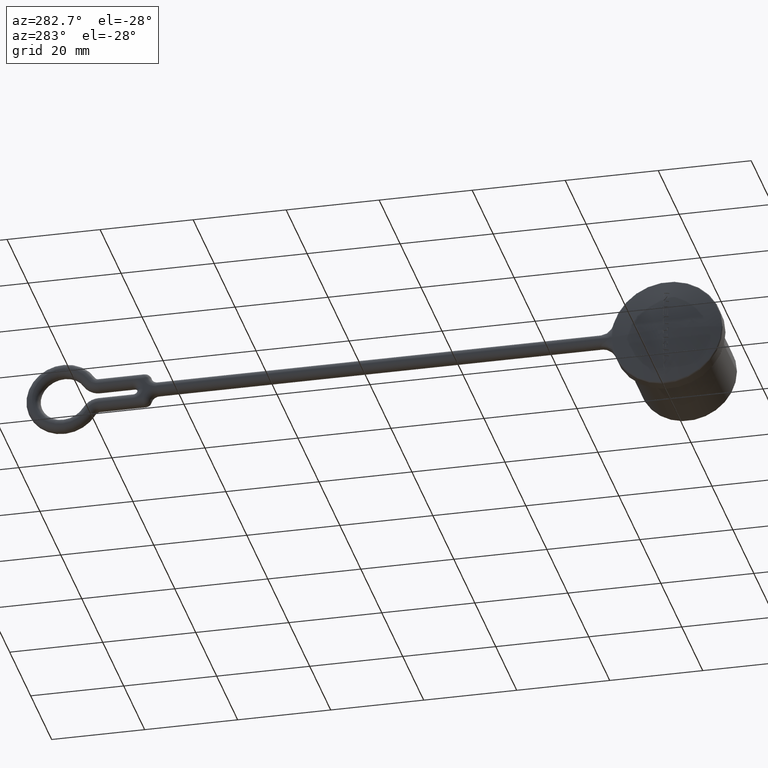
[diagram: clean part render]
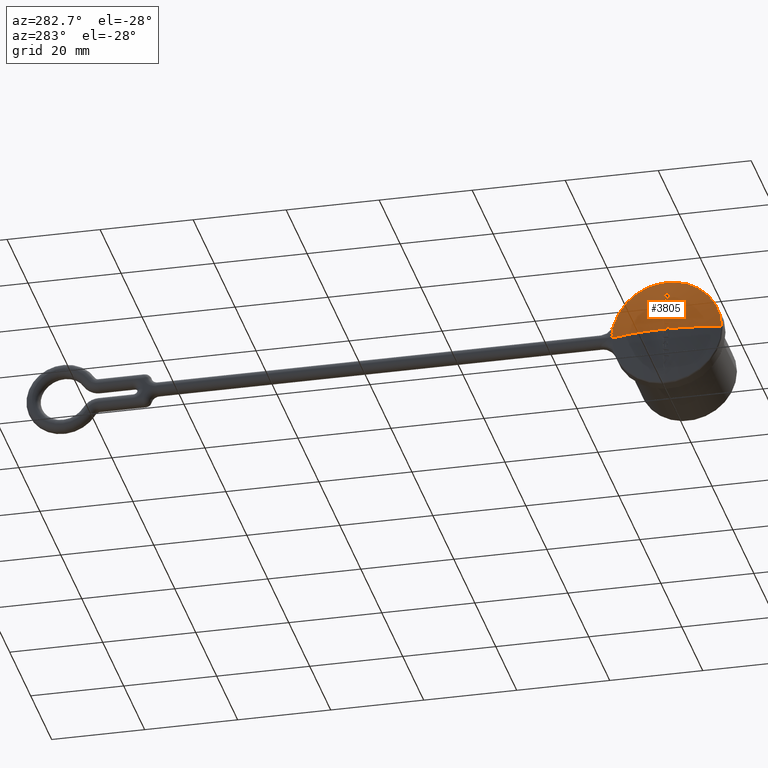
[diagram: same view with one face highlighted and labeled with its STEP entity id]
A machine part, auxiliary view. The second image highlights one B-rep face of the part: STEP entity #3805.
In plain terms, the highlighted spherical surface has radius 48.75 mm.
Its self-contained STEP definition (entity closure, byte-faithful):
#426=CARTESIAN_POINT('',(-3.057210250069E0,1.176179171369E1,5.007474968166E-1));
#427=CARTESIAN_POINT('',(-3.057531107071E0,1.176314051725E1,4.386105985639E-1));
#428=CARTESIAN_POINT('',(-3.059348938048E0,1.175987557986E1,3.186745185695E-1));
#429=CARTESIAN_POINT('',(-3.060150760801E0,1.176027607134E1,1.515604317796E-1));
#430=CARTESIAN_POINT('',(-3.060137454660E0,1.176009241780E1,4.906586877069E-2));
#431=CARTESIAN_POINT('',(-3.060216983427E0,1.175977246916E1,
-4.892866496235E-8));
#452=CARTESIAN_POINT('',(-4.494885192273E0,-7.061639984816E-1,
9.300844638873E-14));
#453=CARTESIAN_POINT('',(-4.494885192273E0,-7.061639984816E-1,
2.422937993826E-2));
#454=CARTESIAN_POINT('',(-4.494849970660E0,-7.061636556981E-1,
7.224224188880E-2));
#455=CARTESIAN_POINT('',(-4.494684499052E0,-7.061641948217E-1,
1.461358649916E-1));
#456=CARTESIAN_POINT('',(-4.494504155381E0,-7.061639984815E-1,
1.942543884347E-1));
#457=CARTESIAN_POINT('',(-4.494395487950E0,-7.061639984815E-1,
2.184969601020E-1));
#459=CARTESIAN_POINT('',(-4.494395487950E0,-7.061639984815E-1,
2.184969601020E-1));
#460=CARTESIAN_POINT('',(-4.494840056316E0,-6.734738410544E-1,
2.249702585973E-1));
#461=CARTESIAN_POINT('',(-4.495641421515E0,-6.095073657693E-1,
2.376429845186E-1));
#462=CARTESIAN_POINT('',(-4.496601535144E0,-5.183636692864E-1,
2.556795621402E-1));
#463=CARTESIAN_POINT('',(-4.497100272742E0,-4.606303363511E-1,
2.671174872182E-1));
#464=CARTESIAN_POINT('',(-4.497318038212E0,-4.325913584816E-1,
2.726697600592E-1));
#466=CARTESIAN_POINT('',(-4.497318038212E0,-4.325913584816E-1,
2.726697600592E-1));
#467=CARTESIAN_POINT('',(-4.497486156323E0,-4.325913584816E-1,
2.426139628092E-1));
#468=CARTESIAN_POINT('',(-4.497765496122E0,-4.325847842039E-1,
1.833547056071E-1));
#469=CARTESIAN_POINT('',(-4.498029296728E0,-4.325905148921E-1,
8.840139575121E-2));
#470=CARTESIAN_POINT('',(-4.498080625976E0,-4.325913584815E-1,
3.018592930511E-2));
#471=CARTESIAN_POINT('',(-4.498080625976E0,-4.325913584815E-1,
4.933543109338E-14));
#473=CARTESIAN_POINT('',(-3.694082470672E0,-7.061639984826E-1,
8.799362957243E0));
#474=CARTESIAN_POINT('',(-3.691312466983E0,-5.768780027249E-1,
8.824830982837E0));
#475=CARTESIAN_POINT('',(-3.684698504078E0,-3.186765737361E-1,
8.875693952433E0));
#476=CARTESIAN_POINT('',(-3.671442797414E0,7.064782215438E-2,8.952387054102E0));
#477=CARTESIAN_POINT('',(-3.660460308927E0,3.291067001235E-1,9.003300750307E0));
#478=CARTESIAN_POINT('',(-3.654415259535E0,4.585512015179E-1,9.028799999899E0));
#480=CARTESIAN_POINT('',(-3.654415259535E0,4.585512015179E-1,9.028799999899E0));
#481=CARTESIAN_POINT('',(-3.673177926165E0,4.585512015179E-1,8.929250273066E0));
#482=CARTESIAN_POINT('',(-3.710082611892E0,4.585512017924E-1,8.730033897170E0));
#483=CARTESIAN_POINT('',(-3.763573668355E0,4.585512018002E-1,8.430881305823E0));
#484=CARTESIAN_POINT('',(-3.797991685408E0,4.585512015188E-1,8.231220319391E0));
#485=CARTESIAN_POINT('',(-3.814889314722E0,4.585512015188E-1,8.131337279898E0));
#487=CARTESIAN_POINT('',(-3.814889314722E0,4.585512015188E-1,8.131337279898E0));
#488=CARTESIAN_POINT('',(-3.818162832879E0,3.821846103240E-1,8.116293838513E0));
#489=CARTESIAN_POINT('',(-3.824325946250E0,2.295872099820E-1,8.086233712169E0));
#490=CARTESIAN_POINT('',(-3.832446480742E0,3.832014526317E-4,8.041082836108E0));
#491=CARTESIAN_POINT('',(-3.837091541810E0,-1.520335348152E-1,
8.011058299942E0));
#492=CARTESIAN_POINT('',(-3.839226772836E0,-2.282708732490E-1,
7.996040320036E0));
#494=CARTESIAN_POINT('',(-3.839226772836E0,-2.282708732490E-1,
7.996040320036E0));
#495=CARTESIAN_POINT('',(-3.856923433879E0,-1.482728701191E-1,
7.891894080314E0));
#496=CARTESIAN_POINT('',(-3.890674385223E0,9.250749160687E-3,7.686821027618E0));
#497=CARTESIAN_POINT('',(-3.936675687736E0,2.380684816110E-1,7.388930855192E0));
#498=CARTESIAN_POINT('',(-3.964498050397E0,3.858488838212E-1,7.196542070882E0));
#499=CARTESIAN_POINT('',(-3.977744455962E0,4.585512015181E-1,7.101893795788E0));
#501=CARTESIAN_POINT('',(-3.977744455962E0,4.585512015181E-1,7.101893795788E0));
#502=CARTESIAN_POINT('',(-3.995455487825E0,4.585512015181E-1,6.981621211704E0));
#503=CARTESIAN_POINT('',(-4.029833217853E0,4.585513200037E-1,6.741924780411E0));
#504=CARTESIAN_POINT('',(-4.078327423237E0,4.585510860765E-1,6.384974273534E0));
#505=CARTESIAN_POINT('',(-4.108651690996E0,4.585512015188E-1,6.148747742278E0));
#506=CARTESIAN_POINT('',(-4.123322477968E0,4.585512015188E-1,6.031078115788E0));
#508=CARTESIAN_POINT('',(-4.123322477968E0,4.585512015188E-1,6.031078115788E0));
#509=CARTESIAN_POINT('',(-4.127727750301E0,3.291353885338E-1,6.005584517521E0));
#510=CARTESIAN_POINT('',(-4.135437730650E0,7.121595101820E-2,5.954777300001E0));
#511=CARTESIAN_POINT('',(-4.143844161095E0,-3.194843932081E-1,
5.877812626142E0));
#512=CARTESIAN_POINT('',(-4.147230829185E0,-5.769647478796E-1,
5.827092010813E0));
#513=CARTESIAN_POINT('',(-4.148396598094E0,-7.061639984822E-1,
5.801641073132E0));
#515=CARTESIAN_POINT('',(-4.148396598094E0,-7.061639984822E-1,
5.801641073132E0));
#516=CARTESIAN_POINT('',(-4.136282330605E0,-7.061639984822E-1,
5.902700603539E0));
#517=CARTESIAN_POINT('',(-4.111292629079E0,-7.061638923820E-1,
6.105812751346E0));
#518=CARTESIAN_POINT('',(-4.071465852335E0,-7.061641065382E-1,
6.413436663925E0));
#519=CARTESIAN_POINT('',(-4.043321334584E0,-7.061639984824E-1,
6.620420311542E0));
#520=CARTESIAN_POINT('',(-4.028840980320E0,-7.061639984824E-1,
6.724384433132E0));
#522=CARTESIAN_POINT('',(-4.028840980320E0,-7.061639984824E-1,
6.724384433132E0));
#523=CARTESIAN_POINT('',(-4.027892951178E0,-6.321593559178E-1,
6.738962594672E0));
#524=CARTESIAN_POINT('',(-4.025645927286E0,-4.842794892500E-1,
6.768093411450E0));
#525=CARTESIAN_POINT('',(-4.021200996082E0,-2.618089213501E-1,
6.811917872344E0));
#526=CARTESIAN_POINT('',(-4.017537131192E0,-1.138761301002E-1,
6.841059116284E0));
#527=CARTESIAN_POINT('',(-4.015526636140E0,-3.983855852921E-2,
6.855643764502E0));
#529=CARTESIAN_POINT('',(-4.015526636140E0,-3.983855852921E-2,
6.855643764502E0));
#530=CARTESIAN_POINT('',(-4.003367911478E0,-1.105743364523E-1,
6.940833318925E0));
#531=CARTESIAN_POINT('',(-3.977904096830E0,-2.542288924036E-1,
7.113840900574E0));
#532=CARTESIAN_POINT('',(-3.936051395167E0,-4.762343147497E-1,
7.381210951657E0));
#533=CARTESIAN_POINT('',(-3.905519770843E0,-6.287733777900E-1,
7.564918424510E0));
#534=CARTESIAN_POINT('',(-3.889557435448E0,-7.061639984827E-1,
7.658122637243E0));
#536=CARTESIAN_POINT('',(-3.889557435448E0,-7.061639984827E-1,
7.658122637243E0));
#537=CARTESIAN_POINT('',(-3.869607810345E0,-7.061639984828E-1,
7.783527539848E0));
#538=CARTESIAN_POINT('',(-3.828552513518E0,-7.061638966466E-1,
8.035287446639E0));
#539=CARTESIAN_POINT('',(-3.763434555486E0,-7.061641034555E-1,
8.415700770685E0));
#540=CARTESIAN_POINT('',(-3.717609620930E0,-7.061639984826E-1,
8.671173264676E0));
#541=CARTESIAN_POINT('',(-3.694082470672E0,-7.061639984826E-1,
8.799362957243E0));
#543=CARTESIAN_POINT('',(-4.197951321031E0,-7.061639984828E-1,
5.372136000103E0));
#544=CARTESIAN_POINT('',(-4.197328241216E0,-5.769215149787E-1,
5.394744014771E0));
#545=CARTESIAN_POINT('',(-4.195035006438E0,-3.195757213755E-1,
5.439760282124E0));
#546=CARTESIAN_POINT('',(-4.188305847769E0,7.154884465225E-2,5.508179412037E0));
#547=CARTESIAN_POINT('',(-4.181733408222E0,3.292026982944E-1,5.553249708480E0));
#548=CARTESIAN_POINT('',(-4.177903471359E0,4.585512015183E-1,5.575876268872E0));
#550=CARTESIAN_POINT('',(-4.177903471359E0,4.585512015183E-1,5.575876268872E0));
#551=CARTESIAN_POINT('',(-4.206383833097E0,4.585512015183E-1,5.328517083955E0));
#552=CARTESIAN_POINT('',(-4.258792019365E0,4.585794901777E-1,4.840002509727E0));
#553=CARTESIAN_POINT('',(-4.324653505590E0,4.585245345504E-1,4.125734830667E0));
#554=CARTESIAN_POINT('',(-4.360518543950E0,4.585512015182E-1,3.663569425725E0));
#555=CARTESIAN_POINT('',(-4.376595465832E0,4.585512015182E-1,3.436050668872E0));
#557=CARTESIAN_POINT('',(-4.376595465832E0,4.585512015182E-1,3.436050668872E0));
#558=CARTESIAN_POINT('',(-4.377333373565E0,4.246878429490E-1,3.430127049281E0));
#559=CARTESIAN_POINT('',(-4.378734442755E0,3.570497238500E-1,3.418295313552E0));
#560=CARTESIAN_POINT('',(-4.380618487811E0,2.555476095780E-1,3.400539830561E0));
#561=CARTESIAN_POINT('',(-4.381725388285E0,1.881050225554E-1,3.388742299246E0));
#562=CARTESIAN_POINT('',(-4.382242737170E0,1.543848445248E-1,3.382843725814E0));
#564=CARTESIAN_POINT('',(-4.382242737170E0,1.543848445248E-1,3.382843725814E0));
#565=CARTESIAN_POINT('',(-4.371736503861E0,1.543848445248E-1,3.533882830770E0));
#566=CARTESIAN_POINT('',(-4.349203656178E0,1.543837667812E-1,3.837487717723E0));
#567=CARTESIAN_POINT('',(-4.310716757956E0,1.543859336122E-1,4.297346872265E0));
#568=CARTESIAN_POINT('',(-4.281838399917E0,1.543848445239E-1,4.606923762771E0));
#569=CARTESIAN_POINT('',(-4.266572312796E0,1.543848445239E-1,4.762444365814E0));
#571=CARTESIAN_POINT('',(-4.266572312796E0,1.543848445239E-1,4.762444365814E0));
#572=CARTESIAN_POINT('',(-4.266921542363E0,1.372263497575E-1,4.759442879841E0));
#573=CARTESIAN_POINT('',(-4.267601104031E0,1.029158955007E-1,4.753441051132E0));
#574=CARTESIAN_POINT('',(-4.268564242210E0,5.144561799708E-2,4.744437503940E0));
#575=CARTESIAN_POINT('',(-4.269168524070E0,1.714853659480E-2,4.738438014508E0));
#576=CARTESIAN_POINT('',(-4.269461295305E0,2.128752500786E-13,
4.735438270490E0));
#578=CARTESIAN_POINT('',(-4.361658142356E0,1.832939751638E-13,
3.670039870490E0));
#579=CARTESIAN_POINT('',(-4.362083634511E0,-3.221840812328E-2,
3.664403997333E0));
#580=CARTESIAN_POINT('',(-4.362868133244E0,-9.661226981747E-2,
3.653139766783E0));
#581=CARTESIAN_POINT('',(-4.363848406207E0,-1.933605792643E-1,
3.636215860253E0));
#582=CARTESIAN_POINT('',(-4.364368666588E0,-2.577327379747E-1,
3.624955426408E0));
#583=CARTESIAN_POINT('',(-4.364595999048E0,-2.899363518878E-1,
3.619322141160E0));
#585=CARTESIAN_POINT('',(-4.364595999048E0,-2.899363518878E-1,
3.619322141160E0));
#586=CARTESIAN_POINT('',(-4.355930029743E0,-2.899363518878E-1,
3.735723108053E0));
#587=CARTESIAN_POINT('',(-4.337657674442E0,-2.899358844146E-1,
3.969865909518E0));
#588=CARTESIAN_POINT('',(-4.307333148086E0,-2.899368340532E-1,
4.325122919291E0));
#589=CARTESIAN_POINT('',(-4.285131081423E0,-2.899363518889E-1,
4.564437606303E0));
#590=CARTESIAN_POINT('',(-4.273518322184E0,-2.899363518889E-1,
4.684720541160E0));
#592=CARTESIAN_POINT('',(-4.274842148446E0,-4.304576513377E-1,
4.660139555767E0));
#593=CARTESIAN_POINT('',(-4.289268890427E0,-4.304576513377E-1,
4.509917578733E0));
#594=CARTESIAN_POINT('',(-4.316454343840E0,-4.304606337680E-1,
4.212185468672E0));
#595=CARTESIAN_POINT('',(-4.352465327967E0,-4.304547356090E-1,
3.773695199915E0));
#596=CARTESIAN_POINT('',(-4.373413415456E0,-4.304576513379E-1,
3.487270396449E0));
#597=CARTESIAN_POINT('',(-4.383162824636E0,-4.304576513379E-1,
3.345546275767E0));
#599=CARTESIAN_POINT('',(-4.383234809102E0,-7.061639984817E-1,
3.297317760102E0));
#600=CARTESIAN_POINT('',(-4.368543307640E0,-7.061639984817E-1,
3.514007594772E0));
#601=CARTESIAN_POINT('',(-4.335589408195E0,-7.061137675925E-1,
3.957160431647E0));
#602=CARTESIAN_POINT('',(-4.274317691957E0,-7.062180070547E-1,
4.649927739308E0));
#603=CARTESIAN_POINT('',(-4.224952852106E0,-7.061639984828E-1,
5.128625995319E0));
#604=CARTESIAN_POINT('',(-4.197951321031E0,-7.061639984828E-1,
5.372136000103E0));
#606=CARTESIAN_POINT('',(-4.461667487455E0,4.585512015185E-1,1.877679788255E0));
#607=CARTESIAN_POINT('',(-4.464789035457E0,4.585568822582E-1,1.796697709096E0));
#608=CARTESIAN_POINT('',(-4.470410506707E0,4.571197313698E-1,1.640711279947E0));
#609=CARTESIAN_POINT('',(-4.477224358227E0,4.493072465983E-1,1.425640744423E0));
#610=CARTESIAN_POINT('',(-4.482740721334E0,4.332876883460E-1,1.227554950897E0));
#611=CARTESIAN_POINT('',(-4.487180991044E0,4.044283844341E-1,1.047001619376E0));
#612=CARTESIAN_POINT('',(-4.490703405132E0,3.544810221401E-1,
8.883472258978E-1));
#613=CARTESIAN_POINT('',(-4.493415580641E0,2.840841168531E-1,
7.535575569274E-1));
#614=CARTESIAN_POINT('',(-4.495212944218E0,1.874175750901E-1,
6.612334664018E-1));
#615=CARTESIAN_POINT('',(-4.496293132700E0,6.710870464582E-2,
6.026767727154E-1));
#616=CARTESIAN_POINT('',(-4.496604893320E0,-2.913589588863E-2,
5.773987168635E-1));
#617=CARTESIAN_POINT('',(-4.496628387684E0,-8.498255848165E-2,
5.670086401020E-1));
#619=CARTESIAN_POINT('',(-4.496628387684E0,-8.498255848165E-2,
5.670086401020E-1));
#620=CARTESIAN_POINT('',(-4.496656312681E0,-1.513609435531E-1,
5.546591731120E-1));
#621=CARTESIAN_POINT('',(-4.496457525283E0,-2.741458480986E-1,
5.319830570897E-1));
#622=CARTESIAN_POINT('',(-4.495297995110E0,-4.803819635997E-1,
4.933605946664E-1));
#623=CARTESIAN_POINT('',(-4.493800077817E0,-6.273994578509E-1,
4.660938681263E-1));
#624=CARTESIAN_POINT('',(-4.492794691460E0,-7.061639984816E-1,
4.514400001020E-1));
#626=CARTESIAN_POINT('',(-4.492794691460E0,-7.061639984816E-1,
4.514400001020E-1));
#627=CARTESIAN_POINT('',(-4.492132506895E0,-7.061639984816E-1,
5.229372672472E-1));
#628=CARTESIAN_POINT('',(-4.490441632932E0,-7.061630014488E-1,
6.720130629235E-1));
#629=CARTESIAN_POINT('',(-4.486434210846E0,-7.061642608604E-1,
9.200249888616E-1));
#630=CARTESIAN_POINT('',(-4.482516145129E0,-7.061639984817E-1,
1.102154801375E0));
#631=CARTESIAN_POINT('',(-4.480180580012E0,-7.061639984817E-1,
1.197218880102E0));
#633=CARTESIAN_POINT('',(-4.480180580012E0,-7.061639984817E-1,
1.197218880102E0));
#634=CARTESIAN_POINT('',(-4.480752173765E0,-6.484046434692E-1,
1.208022009344E0));
#635=CARTESIAN_POINT('',(-4.481677559857E0,-5.342364953960E-1,
1.229376200583E0));
#636=CARTESIAN_POINT('',(-4.482452915874E0,-3.558925555286E-1,
1.262730509168E0));
#637=CARTESIAN_POINT('',(-4.482521536819E0,-2.420729640404E-1,
1.284021016721E0));
#638=CARTESIAN_POINT('',(-4.482452714068E0,-1.842152292068E-1,
1.294842546617E0));
#640=CARTESIAN_POINT('',(-4.482452714068E0,-1.842152292068E-1,
1.294842546617E0));
#641=CARTESIAN_POINT('',(-4.482394625698E0,-1.353816464293E-1,
1.303976227316E0));
#642=CARTESIAN_POINT('',(-4.482066422105E0,-4.623174979065E-2,
1.323614799607E0));
#643=CARTESIAN_POINT('',(-4.480950947247E0,7.620050102229E-2,1.362255639601E0));
#644=CARTESIAN_POINT('',(-4.478604772434E0,1.606125689978E-1,1.436691138734E0));
#645=CARTESIAN_POINT('',(-4.474952004373E0,2.098152249883E-1,1.550237297725E0));
#646=CARTESIAN_POINT('',(-4.470367620686E0,2.201833752895E-1,1.687168179154E0));
#647=CARTESIAN_POINT('',(-4.466824948567E0,2.229031272253E-1,1.785056575987E0));
#648=CARTESIAN_POINT('',(-4.464887232868E0,2.228995215182E-1,1.836457920102E0));
#650=CARTESIAN_POINT('',(-4.464887232868E0,2.228995215182E-1,1.836457920102E0));
#651=CARTESIAN_POINT('',(-4.463342866858E0,2.228966477574E-1,1.877424966352E0));
#652=CARTESIAN_POINT('',(-4.460271620068E0,2.218796628658E-1,1.956284476332E0));
#653=CARTESIAN_POINT('',(-4.455778503005E0,2.146750255227E-1,2.065724013790E0));
#654=CARTESIAN_POINT('',(-4.451525533153E0,1.999074247940E-1,2.164964525809E0));
#655=CARTESIAN_POINT('',(-4.447970574144E0,1.512010680477E-1,2.247253047927E0));
#656=CARTESIAN_POINT('',(-4.446654123651E0,5.940065167460E-2,2.279973019210E0));
#657=CARTESIAN_POINT('',(-4.447073226273E0,-4.739059851834E-2,
2.271433406593E0));
#658=CARTESIAN_POINT('',(-4.447456889999E0,-1.225792085701E-1,
2.259812035358E0));
#659=CARTESIAN_POINT('',(-4.447665416362E0,-1.616954555781E-1,
2.252495854771E0));
#661=CARTESIAN_POINT('',(-4.447665416362E0,-1.616954555781E-1,
2.252495854771E0));
#662=CARTESIAN_POINT('',(-4.447987540437E0,-2.221208362948E-1,
2.241194080414E0));
#663=CARTESIAN_POINT('',(-4.448399088008E0,-3.422471708219E-1,
2.218725944834E0));
#664=CARTESIAN_POINT('',(-4.448315667132E0,-5.256164922564E-1,
2.184429161637E0));
#665=CARTESIAN_POINT('',(-4.447794797201E0,-6.457439153122E-1,
2.161960943699E0));
#666=CARTESIAN_POINT('',(-4.447417727051E0,-7.061639984818E-1,
2.150660160179E0));
#668=CARTESIAN_POINT('',(-4.447417727051E0,-7.061639984818E-1,
2.150660160179E0));
#669=CARTESIAN_POINT('',(-4.443916765713E0,-7.061639984818E-1,
2.229932459864E0));
#670=CARTESIAN_POINT('',(-4.436410009942E0,-7.061604145714E-1,
2.391121240898E0));
#671=CARTESIAN_POINT('',(-4.423541699427E0,-7.061677158374E-1,
2.640371041995E0));
#672=CARTESIAN_POINT('',(-4.413814844135E0,-7.061639984818E-1,
2.811495916764E0));
#673=CARTESIAN_POINT('',(-4.408647838650E0,-7.061639984819E-1,
2.898244800179E0));
#675=CARTESIAN_POINT('',(-4.408647838650E0,-7.061639984819E-1,
2.898244800179E0));
#676=CARTESIAN_POINT('',(-4.408884476862E0,-6.371966139956E-1,
2.911075941479E0));
#677=CARTESIAN_POINT('',(-4.409056031704E0,-4.998848672396E-1,
2.936622209475E0));
#678=CARTESIAN_POINT('',(-4.408394074427E0,-2.912512963442E-1,
2.975437900007E0));
#679=CARTESIAN_POINT('',(-4.407351032580E0,-1.539323466941E-1,
3.000985572605E0));
#680=CARTESIAN_POINT('',(-4.406676895496E0,-8.498255848145E-2,
3.013813440179E0));
#682=CARTESIAN_POINT('',(-4.406676895496E0,-8.498255848145E-2,
3.013813440179E0));
#683=CARTESIAN_POINT('',(-4.406159201735E0,-3.203357226180E-2,
3.023664414359E0));
#684=CARTESIAN_POINT('',(-4.405407618353E0,6.746025316709E-2,3.035821826030E0));
#685=CARTESIAN_POINT('',(-4.406195261127E0,2.046802668385E-1,3.016717064775E0));
#686=CARTESIAN_POINT('',(-4.410309822850E0,3.031538529167E-1,2.941168309329E0));
#687=CARTESIAN_POINT('',(-4.417361779113E0,3.699754590560E-1,2.814443435017E0));
#688=CARTESIAN_POINT('',(-4.425471696087E0,4.134890242927E-1,2.664380307618E0));
#689=CARTESIAN_POINT('',(-4.434343546378E0,4.371886768313E-1,2.493379769856E0));
#690=CARTESIAN_POINT('',(-4.443480706742E0,4.506554524499E-1,2.305886107942E0));
#691=CARTESIAN_POINT('',(-4.452667006183E0,4.572889584995E-1,2.102072194095E0));
#692=CARTESIAN_POINT('',(-4.458713459554E0,4.585458256397E-1,1.954315906341E0));
#693=CARTESIAN_POINT('',(-4.461667487455E0,4.585512015185E-1,1.877679788255E0));
#695=CARTESIAN_POINT('',(-3.057208958096E0,0.E0,0.E0));
#696=DIRECTION('',(-1.E0,0.E0,0.E0));
#697=DIRECTION('',(0.E0,-1.E0,-6.207516785639E-14));
#698=AXIS2_PLACEMENT_3D('',#695,#696,#697);
#763=CARTESIAN_POINT('',(4.425E1,0.E0,0.E0));
#764=DIRECTION('',(0.E0,2.059349286905E-13,1.E0));
#765=DIRECTION('',(-9.704687696995E-1,2.412267958537E-1,-4.967702300238E-14));
#766=AXIS2_PLACEMENT_3D('',#763,#764,#765);
#768=CARTESIAN_POINT('',(4.425E1,0.E0,0.E0));
#769=DIRECTION('',(0.E0,4.136462142204E-13,1.E0));
#770=DIRECTION('',(-1.E0,0.E0,0.E0));
#771=AXIS2_PLACEMENT_3D('',#768,#769,#770);
#827=CARTESIAN_POINT('',(4.425E1,0.E0,0.E0));
#828=DIRECTION('',(0.E0,4.136462142204E-13,1.E0));
#829=DIRECTION('',(-9.998950808670E-1,-1.448541535346E-2,0.E0));
#830=AXIS2_PLACEMENT_3D('',#827,#828,#829);
#1642=CARTESIAN_POINT('',(-4.383162824636E0,-4.304576513379E-1,
3.345546275767E0));
#1643=CARTESIAN_POINT('',(-4.383260384665E0,-4.611139814186E-1,
3.340183652415E0));
#1644=CARTESIAN_POINT('',(-4.383424364563E0,-5.222808205631E-1,
3.329062582601E0));
#1645=CARTESIAN_POINT('',(-4.383390797687E0,-6.143432372684E-1,
3.313801959528E0));
#1646=CARTESIAN_POINT('',(-4.383316329457E0,-6.755194545875E-1,
3.302678321730E0));
#1647=CARTESIAN_POINT('',(-4.383234809102E0,-7.061639984817E-1,
3.297317760102E0));
#1666=CARTESIAN_POINT('',(-4.273518322184E0,-2.899363518889E-1,
4.684720541160E0));
#1667=CARTESIAN_POINT('',(-4.273692224502E0,-3.058713523253E-1,
4.681933077519E0));
#1668=CARTESIAN_POINT('',(-4.274541660158E0,-3.361845778071E-1,
4.671091439168E0));
#1669=CARTESIAN_POINT('',(-4.273927245256E0,-3.842204083405E-1,
4.673769444036E0));
#1670=CARTESIAN_POINT('',(-4.274716249339E0,-4.145782550138E-1,
4.662917292741E0));
#1671=CARTESIAN_POINT('',(-4.274842148446E0,-4.304576513377E-1,
4.660139555767E0));
#1695=CARTESIAN_POINT('',(4.425E1,0.E0,0.E0));
#1696=DIRECTION('',(0.E0,1.E0,-1.034115535551E-13));
#1697=DIRECTION('',(-9.971622183047E-1,0.E0,7.528286913825E-2));
#1698=AXIS2_PLACEMENT_3D('',#1695,#1696,#1697);
#2577=CARTESIAN_POINT('',(-4.494885192267E0,-7.061639984814E-1,
2.921020645906E-13));
#2578=CARTESIAN_POINT('',(-3.057208958096E0,-1.177244582043E1,
4.869627645738E-12));
#2579=VERTEX_POINT('',#2577);
#2580=VERTEX_POINT('',#2578);
#2581=CARTESIAN_POINT('',(-4.5E0,0.E0,0.E0));
#2582=CARTESIAN_POINT('',(-4.498080625975E0,-4.325913584816E-1,
1.789397777404E-13));
#2583=VERTEX_POINT('',#2581);
#2584=VERTEX_POINT('',#2582);
#2585=CARTESIAN_POINT('',(-3.060352522852E0,1.175980629787E1,
-2.421754871366E-12));
#2586=VERTEX_POINT('',#2585);
#2817=VERTEX_POINT('',#426);
#2818=VERTEX_POINT('',#457);
#2819=VERTEX_POINT('',#464);
#2820=VERTEX_POINT('',#473);
#2821=VERTEX_POINT('',#478);
#2822=VERTEX_POINT('',#485);
#2823=VERTEX_POINT('',#492);
#2824=VERTEX_POINT('',#499);
#2825=VERTEX_POINT('',#506);
#2826=VERTEX_POINT('',#513);
#2827=VERTEX_POINT('',#520);
#2828=VERTEX_POINT('',#527);
#2829=VERTEX_POINT('',#534);
#2830=VERTEX_POINT('',#543);
#2831=VERTEX_POINT('',#548);
#2832=VERTEX_POINT('',#555);
#2833=VERTEX_POINT('',#562);
#2834=VERTEX_POINT('',#569);
#2835=VERTEX_POINT('',#576);
#2836=CARTESIAN_POINT('',(-4.361658142353E0,3.795245246165E-13,
3.670039870490E0));
#2837=VERTEX_POINT('',#2836);
#2838=VERTEX_POINT('',#583);
#2839=VERTEX_POINT('',#590);
#2840=VERTEX_POINT('',#1671);
#2841=VERTEX_POINT('',#597);
#2842=VERTEX_POINT('',#1647);
#2843=VERTEX_POINT('',#606);
#2844=VERTEX_POINT('',#617);
#2845=VERTEX_POINT('',#624);
#2846=VERTEX_POINT('',#631);
#2847=VERTEX_POINT('',#638);
#2848=VERTEX_POINT('',#648);
#2849=VERTEX_POINT('',#659);
#2850=VERTEX_POINT('',#666);
#2851=VERTEX_POINT('',#673);
#2852=VERTEX_POINT('',#680);
#3713=CARTESIAN_POINT('',(4.425E1,0.E0,0.E0));
#3714=DIRECTION('',(1.E0,0.E0,0.E0));
#3715=DIRECTION('',(0.E0,-1.E0,0.E0));
#3716=AXIS2_PLACEMENT_3D('',#3713,#3714,#3715);
#3717=SPHERICAL_SURFACE('',#3716,4.875E1);
#3719=ORIENTED_EDGE('',*,*,#3718,.F.);
#3721=ORIENTED_EDGE('',*,*,#3720,.F.);
#3723=ORIENTED_EDGE('',*,*,#3722,.T.);
#3725=ORIENTED_EDGE('',*,*,#3724,.T.);
#3727=ORIENTED_EDGE('',*,*,#3726,.T.);
#3729=ORIENTED_EDGE('',*,*,#3728,.F.);
#3731=ORIENTED_EDGE('',*,*,#3730,.F.);
#3732=ORIENTED_EDGE('',*,*,#3702,.F.);
#3733=EDGE_LOOP('',(#3719,#3721,#3723,#3725,#3727,#3729,#3731,#3732));
#3734=FACE_OUTER_BOUND('',#3733,.F.);
#3736=ORIENTED_EDGE('',*,*,#3735,.T.);
#3738=ORIENTED_EDGE('',*,*,#3737,.T.);
#3740=ORIENTED_EDGE('',*,*,#3739,.T.);
#3742=ORIENTED_EDGE('',*,*,#3741,.T.);
#3744=ORIENTED_EDGE('',*,*,#3743,.T.);
#3746=ORIENTED_EDGE('',*,*,#3745,.T.);
#3748=ORIENTED_EDGE('',*,*,#3747,.T.);
#3750=ORIENTED_EDGE('',*,*,#3749,.T.);
#3752=ORIENTED_EDGE('',*,*,#3751,.T.);
#3754=ORIENTED_EDGE('',*,*,#3753,.T.);
#3755=EDGE_LOOP('',(#3736,#3738,#3740,#3742,#3744,#3746,#3748,#3750,#3752,
#3754));
#3756=FACE_BOUND('',#3755,.F.);
#3758=ORIENTED_EDGE('',*,*,#3757,.T.);
#3760=ORIENTED_EDGE('',*,*,#3759,.T.);
#3762=ORIENTED_EDGE('',*,*,#3761,.T.);
#3764=ORIENTED_EDGE('',*,*,#3763,.T.);
#3766=ORIENTED_EDGE('',*,*,#3765,.T.);
#3768=ORIENTED_EDGE('',*,*,#3767,.F.);
#3770=ORIENTED_EDGE('',*,*,#3769,.T.);
#3772=ORIENTED_EDGE('',*,*,#3771,.T.);
#3774=ORIENTED_EDGE('',*,*,#3773,.T.);
#3776=ORIENTED_EDGE('',*,*,#3775,.T.);
#3778=ORIENTED_EDGE('',*,*,#3777,.T.);
#3780=ORIENTED_EDGE('',*,*,#3779,.T.);
#3781=EDGE_LOOP('',(#3758,#3760,#3762,#3764,#3766,#3768,#3770,#3772,#3774,#3776,
#3778,#3780));
#3782=FACE_BOUND('',#3781,.F.);
#3784=ORIENTED_EDGE('',*,*,#3783,.T.);
#3786=ORIENTED_EDGE('',*,*,#3785,.T.);
#3788=ORIENTED_EDGE('',*,*,#3787,.T.);
#3790=ORIENTED_EDGE('',*,*,#3789,.T.);
#3792=ORIENTED_EDGE('',*,*,#3791,.T.);
#3794=ORIENTED_EDGE('',*,*,#3793,.T.);
#3796=ORIENTED_EDGE('',*,*,#3795,.T.);
#3798=ORIENTED_EDGE('',*,*,#3797,.T.);
#3800=ORIENTED_EDGE('',*,*,#3799,.T.);
#3802=ORIENTED_EDGE('',*,*,#3801,.T.);
#3803=EDGE_LOOP('',(#3784,#3786,#3788,#3790,#3792,#3794,#3796,#3798,#3800,
#3802));
#3804=FACE_BOUND('',#3803,.F.);
#432=B_SPLINE_CURVE_WITH_KNOTS('',3,(#426,#427,#428,#429,#430,#431),
.UNSPECIFIED.,.F.,.F.,(4,1,1,4),(0.E0,3.333333333333E-1,6.666666666667E-1,1.E0),
.UNSPECIFIED.);
#458=B_SPLINE_CURVE_WITH_KNOTS('',3,(#452,#453,#454,#455,#456,#457),
.UNSPECIFIED.,.F.,.F.,(4,1,1,4),(0.E0,3.333333333333E-1,6.666666666667E-1,1.E0),
.UNSPECIFIED.);
#465=B_SPLINE_CURVE_WITH_KNOTS('',3,(#459,#460,#461,#462,#463,#464),
.UNSPECIFIED.,.F.,.F.,(4,1,1,4),(0.E0,3.333333333333E-1,6.666666666667E-1,1.E0),
.UNSPECIFIED.);
#472=B_SPLINE_CURVE_WITH_KNOTS('',3,(#466,#467,#468,#469,#470,#471),
.UNSPECIFIED.,.F.,.F.,(4,1,1,4),(0.E0,3.333333333333E-1,6.666666666667E-1,1.E0),
.UNSPECIFIED.);
#479=B_SPLINE_CURVE_WITH_KNOTS('',3,(#473,#474,#475,#476,#477,#478),
.UNSPECIFIED.,.F.,.F.,(4,1,1,4),(0.E0,3.333333333333E-1,6.666666666667E-1,1.E0),
.UNSPECIFIED.);
#486=B_SPLINE_CURVE_WITH_KNOTS('',3,(#480,#481,#482,#483,#484,#485),
.UNSPECIFIED.,.F.,.F.,(4,1,1,4),(0.E0,3.333333333333E-1,6.666666666667E-1,1.E0),
.UNSPECIFIED.);
#493=B_SPLINE_CURVE_WITH_KNOTS('',3,(#487,#488,#489,#490,#491,#492),
.UNSPECIFIED.,.F.,.F.,(4,1,1,4),(0.E0,3.333333333333E-1,6.666666666667E-1,1.E0),
.UNSPECIFIED.);
#500=B_SPLINE_CURVE_WITH_KNOTS('',3,(#494,#495,#496,#497,#498,#499),
.UNSPECIFIED.,.F.,.F.,(4,1,1,4),(0.E0,3.333333333333E-1,6.666666666667E-1,1.E0),
.UNSPECIFIED.);
#507=B_SPLINE_CURVE_WITH_KNOTS('',3,(#501,#502,#503,#504,#505,#506),
.UNSPECIFIED.,.F.,.F.,(4,1,1,4),(0.E0,3.333333333333E-1,6.666666666667E-1,1.E0),
.UNSPECIFIED.);
#514=B_SPLINE_CURVE_WITH_KNOTS('',3,(#508,#509,#510,#511,#512,#513),
.UNSPECIFIED.,.F.,.F.,(4,1,1,4),(0.E0,3.333333333333E-1,6.666666666667E-1,1.E0),
.UNSPECIFIED.);
#521=B_SPLINE_CURVE_WITH_KNOTS('',3,(#515,#516,#517,#518,#519,#520),
.UNSPECIFIED.,.F.,.F.,(4,1,1,4),(0.E0,3.333333333333E-1,6.666666666667E-1,1.E0),
.UNSPECIFIED.);
#528=B_SPLINE_CURVE_WITH_KNOTS('',3,(#522,#523,#524,#525,#526,#527),
.UNSPECIFIED.,.F.,.F.,(4,1,1,4),(0.E0,3.333333333333E-1,6.666666666667E-1,1.E0),
.UNSPECIFIED.);
#535=B_SPLINE_CURVE_WITH_KNOTS('',3,(#529,#530,#531,#532,#533,#534),
.UNSPECIFIED.,.F.,.F.,(4,1,1,4),(0.E0,3.333333333333E-1,6.666666666667E-1,1.E0),
.UNSPECIFIED.);
#542=B_SPLINE_CURVE_WITH_KNOTS('',3,(#536,#537,#538,#539,#540,#541),
.UNSPECIFIED.,.F.,.F.,(4,1,1,4),(0.E0,3.333333333333E-1,6.666666666667E-1,1.E0),
.UNSPECIFIED.);
#549=B_SPLINE_CURVE_WITH_KNOTS('',3,(#543,#544,#545,#546,#547,#548),
.UNSPECIFIED.,.F.,.F.,(4,1,1,4),(0.E0,3.333333333333E-1,6.666666666667E-1,1.E0),
.UNSPECIFIED.);
#556=B_SPLINE_CURVE_WITH_KNOTS('',3,(#550,#551,#552,#553,#554,#555),
.UNSPECIFIED.,.F.,.F.,(4,1,1,4),(0.E0,3.333333333333E-1,6.666666666667E-1,1.E0),
.UNSPECIFIED.);
#563=B_SPLINE_CURVE_WITH_KNOTS('',3,(#557,#558,#559,#560,#561,#562),
.UNSPECIFIED.,.F.,.F.,(4,1,1,4),(0.E0,3.333333333333E-1,6.666666666667E-1,1.E0),
.UNSPECIFIED.);
#570=B_SPLINE_CURVE_WITH_KNOTS('',3,(#564,#565,#566,#567,#568,#569),
.UNSPECIFIED.,.F.,.F.,(4,1,1,4),(0.E0,3.333333333333E-1,6.666666666667E-1,1.E0),
.UNSPECIFIED.);
#577=B_SPLINE_CURVE_WITH_KNOTS('',3,(#571,#572,#573,#574,#575,#576),
.UNSPECIFIED.,.F.,.F.,(4,1,1,4),(0.E0,3.333333333333E-1,6.666666666667E-1,1.E0),
.UNSPECIFIED.);
#584=B_SPLINE_CURVE_WITH_KNOTS('',3,(#578,#579,#580,#581,#582,#583),
.UNSPECIFIED.,.F.,.F.,(4,1,1,4),(0.E0,3.333333333333E-1,6.666666666667E-1,1.E0),
.UNSPECIFIED.);
#591=B_SPLINE_CURVE_WITH_KNOTS('',3,(#585,#586,#587,#588,#589,#590),
.UNSPECIFIED.,.F.,.F.,(4,1,1,4),(0.E0,3.333333333333E-1,6.666666666667E-1,1.E0),
.UNSPECIFIED.);
#598=B_SPLINE_CURVE_WITH_KNOTS('',3,(#592,#593,#594,#595,#596,#597),
.UNSPECIFIED.,.F.,.F.,(4,1,1,4),(0.E0,3.333333333333E-1,6.666666666667E-1,1.E0),
.UNSPECIFIED.);
#605=B_SPLINE_CURVE_WITH_KNOTS('',3,(#599,#600,#601,#602,#603,#604),
.UNSPECIFIED.,.F.,.F.,(4,1,1,4),(0.E0,3.333333333333E-1,6.666666666667E-1,1.E0),
.UNSPECIFIED.);
#618=B_SPLINE_CURVE_WITH_KNOTS('',3,(#606,#607,#608,#609,#610,#611,#612,#613,
#614,#615,#616,#617),.UNSPECIFIED.,.F.,.F.,(4,1,1,1,1,1,1,1,1,4),(0.E0,
1.111111111111E-1,2.222222222222E-1,3.333333333333E-1,4.444444444444E-1,
5.555555555556E-1,6.666666666667E-1,7.777777777778E-1,8.888888888889E-1,1.E0),
.UNSPECIFIED.);
#625=B_SPLINE_CURVE_WITH_KNOTS('',3,(#619,#620,#621,#622,#623,#624),
.UNSPECIFIED.,.F.,.F.,(4,1,1,4),(0.E0,3.333333333333E-1,6.666666666667E-1,1.E0),
.UNSPECIFIED.);
#632=B_SPLINE_CURVE_WITH_KNOTS('',3,(#626,#627,#628,#629,#630,#631),
.UNSPECIFIED.,.F.,.F.,(4,1,1,4),(0.E0,3.333333333333E-1,6.666666666667E-1,1.E0),
.UNSPECIFIED.);
#639=B_SPLINE_CURVE_WITH_KNOTS('',3,(#633,#634,#635,#636,#637,#638),
.UNSPECIFIED.,.F.,.F.,(4,1,1,4),(0.E0,3.333333333333E-1,6.666666666667E-1,1.E0),
.UNSPECIFIED.);
#649=B_SPLINE_CURVE_WITH_KNOTS('',3,(#640,#641,#642,#643,#644,#645,#646,#647,
#648),.UNSPECIFIED.,.F.,.F.,(4,1,1,1,1,1,4),(0.E0,1.666666666667E-1,
3.333333333333E-1,5.E-1,6.666666666667E-1,8.333333333333E-1,1.E0),
.UNSPECIFIED.);
#660=B_SPLINE_CURVE_WITH_KNOTS('',3,(#650,#651,#652,#653,#654,#655,#656,#657,
#658,#659),.UNSPECIFIED.,.F.,.F.,(4,1,1,1,1,1,1,4),(0.E0,1.428571428571E-1,
2.857142857143E-1,4.285714285714E-1,5.714285714286E-1,7.142857142857E-1,
8.571428571429E-1,1.E0),.UNSPECIFIED.);
#667=B_SPLINE_CURVE_WITH_KNOTS('',3,(#661,#662,#663,#664,#665,#666),
.UNSPECIFIED.,.F.,.F.,(4,1,1,4),(0.E0,3.333333333333E-1,6.666666666667E-1,1.E0),
.UNSPECIFIED.);
#674=B_SPLINE_CURVE_WITH_KNOTS('',3,(#668,#669,#670,#671,#672,#673),
.UNSPECIFIED.,.F.,.F.,(4,1,1,4),(0.E0,3.333333333333E-1,6.666666666667E-1,1.E0),
.UNSPECIFIED.);
#681=B_SPLINE_CURVE_WITH_KNOTS('',3,(#675,#676,#677,#678,#679,#680),
.UNSPECIFIED.,.F.,.F.,(4,1,1,4),(0.E0,3.333333333333E-1,6.666666666667E-1,1.E0),
.UNSPECIFIED.);
#694=B_SPLINE_CURVE_WITH_KNOTS('',3,(#682,#683,#684,#685,#686,#687,#688,#689,
#690,#691,#692,#693),.UNSPECIFIED.,.F.,.F.,(4,1,1,1,1,1,1,1,1,4),(0.E0,
1.111111111111E-1,2.222222222222E-1,3.333333333333E-1,4.444444444444E-1,
5.555555555556E-1,6.666666666667E-1,7.777777777778E-1,8.888888888889E-1,1.E0),
.UNSPECIFIED.);
#699=CIRCLE('',#698,1.177244582044E1);
#767=CIRCLE('',#766,4.875E1);
#772=CIRCLE('',#771,4.875E1);
#831=CIRCLE('',#830,4.875E1);
#1648=B_SPLINE_CURVE_WITH_KNOTS('',3,(#1642,#1643,#1644,#1645,#1646,#1647),
.UNSPECIFIED.,.F.,.F.,(4,1,1,4),(0.E0,3.333333333333E-1,6.666666666667E-1,1.E0),
.UNSPECIFIED.);
#1672=B_SPLINE_CURVE_WITH_KNOTS('',3,(#1666,#1667,#1668,#1669,#1670,#1671),
.UNSPECIFIED.,.F.,.F.,(4,1,1,4),(0.E0,3.333333333333E-1,6.666666666667E-1,1.E0),
.UNSPECIFIED.);
#1699=CIRCLE('',#1698,4.875E1);
#3702=EDGE_CURVE('',#2817,#2586,#432,.T.);
#3718=EDGE_CURVE('',#2580,#2817,#699,.T.);
#3720=EDGE_CURVE('',#2579,#2580,#831,.T.);
#3722=EDGE_CURVE('',#2579,#2818,#458,.T.);
#3724=EDGE_CURVE('',#2818,#2819,#465,.T.);
#3726=EDGE_CURVE('',#2819,#2584,#472,.T.);
#3728=EDGE_CURVE('',#2583,#2584,#772,.T.);
#3730=EDGE_CURVE('',#2586,#2583,#767,.T.);
#3735=EDGE_CURVE('',#2820,#2821,#479,.T.);
#3737=EDGE_CURVE('',#2821,#2822,#486,.T.);
#3739=EDGE_CURVE('',#2822,#2823,#493,.T.);
#3741=EDGE_CURVE('',#2823,#2824,#500,.T.);
#3743=EDGE_CURVE('',#2824,#2825,#507,.T.);
#3745=EDGE_CURVE('',#2825,#2826,#514,.T.);
#3747=EDGE_CURVE('',#2826,#2827,#521,.T.);
#3749=EDGE_CURVE('',#2827,#2828,#528,.T.);
#3751=EDGE_CURVE('',#2828,#2829,#535,.T.);
#3753=EDGE_CURVE('',#2829,#2820,#542,.T.);
#3757=EDGE_CURVE('',#2830,#2831,#549,.T.);
#3759=EDGE_CURVE('',#2831,#2832,#556,.T.);
#3761=EDGE_CURVE('',#2832,#2833,#563,.T.);
#3763=EDGE_CURVE('',#2833,#2834,#570,.T.);
#3765=EDGE_CURVE('',#2834,#2835,#577,.T.);
#3767=EDGE_CURVE('',#2837,#2835,#1699,.T.);
#3769=EDGE_CURVE('',#2837,#2838,#584,.T.);
#3771=EDGE_CURVE('',#2838,#2839,#591,.T.);
#3773=EDGE_CURVE('',#2839,#2840,#1672,.T.);
#3775=EDGE_CURVE('',#2840,#2841,#598,.T.);
#3777=EDGE_CURVE('',#2841,#2842,#1648,.T.);
#3779=EDGE_CURVE('',#2842,#2830,#605,.T.);
#3783=EDGE_CURVE('',#2843,#2844,#618,.T.);
#3785=EDGE_CURVE('',#2844,#2845,#625,.T.);
#3787=EDGE_CURVE('',#2845,#2846,#632,.T.);
#3789=EDGE_CURVE('',#2846,#2847,#639,.T.);
#3791=EDGE_CURVE('',#2847,#2848,#649,.T.);
#3793=EDGE_CURVE('',#2848,#2849,#660,.T.);
#3795=EDGE_CURVE('',#2849,#2850,#667,.T.);
#3797=EDGE_CURVE('',#2850,#2851,#674,.T.);
#3799=EDGE_CURVE('',#2851,#2852,#681,.T.);
#3801=EDGE_CURVE('',#2852,#2843,#694,.T.);
#3805=ADVANCED_FACE('',(#3734,#3756,#3782,#3804),#3717,.T.);